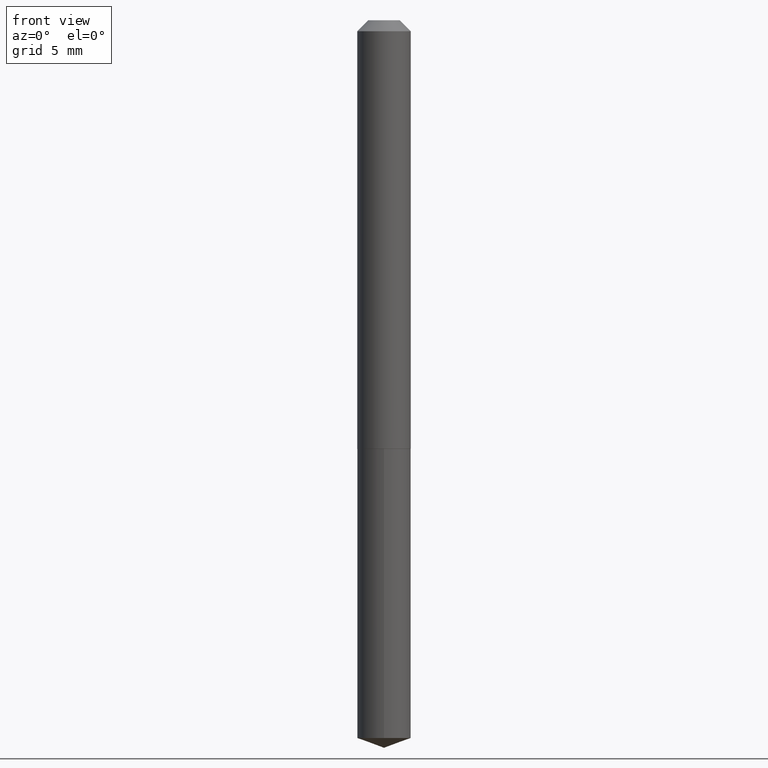
[diagram: clean part render]
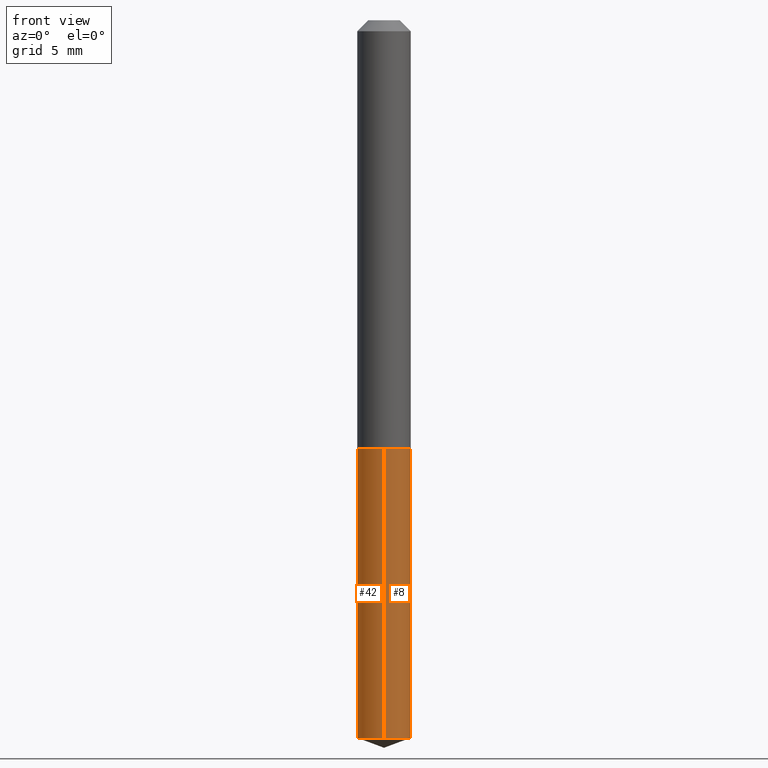
[diagram: same view with one multi-face feature highlighted, each face labeled with its STEP entity id]
A machine part, front view. The highlighted faces form ONE feature: a constant-radius fillet chain: 2 tangent blend faces with common blend radius 1.9304 mm. The faces share edges in the B-rep.
Their STEP definitions:
[1] entity #42 (Cylinder):
#2 = FACE_OUTER_BOUND ( 'NONE', #35, .T. ) ;
#17 = ORIENTED_EDGE ( 'NONE', *, *, #240, .F. ) ;
#23 = CIRCLE ( 'NONE', #84, 0.07599999999999999811 ) ;
#32 = DIRECTION ( 'NONE',  ( -2.445502478072881663E-29, 3.491433118783410278E-15, 1.000000000000000000 ) ) ;
#35 = EDGE_LOOP ( 'NONE', ( #17, #175, #110, #315 ) ) ;
#40 = CARTESIAN_POINT ( 'NONE',  ( 4.976161118169602399E-29, -7.104560263260536037E-15, -2.034838262195768799 ) ) ;
#42 = ADVANCED_FACE ( 'NONE', ( #2 ), #325, .T. ) ;
#60 = VERTEX_POINT ( 'NONE', #157 ) ;
#74 = EDGE_CURVE ( 'NONE', #326, #60, #183, .T. ) ;
#75 = DIRECTION ( 'NONE',  ( -2.445502478072881663E-29, 3.491433118783410278E-15, 1.000000000000000000 ) ) ;
#84 = AXIS2_PLACEMENT_3D ( 'NONE', #172, #384, #352 ) ;
#85 = VERTEX_POINT ( 'NONE', #125 ) ;
#110 = ORIENTED_EDGE ( 'NONE', *, *, #74, .T. ) ;
#121 = AXIS2_PLACEMENT_3D ( 'NONE', #323, #187, #390 ) ;
#125 = CARTESIAN_POINT ( 'NONE',  ( 5.400124791777260233E-16, 0.07599999999999575151, -1.214500000000000357 ) ) ;
#157 = CARTESIAN_POINT ( 'NONE',  ( -5.307051635041264353E-16, -0.07600000000000424472, -1.214499999999999691 ) ) ;
#172 = CARTESIAN_POINT ( 'NONE',  ( 2.970021865111848096E-29, -4.240404086025000196E-15, -1.214499999999999913 ) ) ;
#175 = ORIENTED_EDGE ( 'NONE', *, *, #215, .T. ) ;
#177 = VECTOR ( 'NONE', #75, 39.37007874015748143 ) ;
#183 = LINE ( 'NONE', #293, #246 ) ;
#187 = DIRECTION ( 'NONE',  ( -2.445502478072881383E-29, 3.491433118783410278E-15, 1.000000000000000000 ) ) ;
#197 = CARTESIAN_POINT ( 'NONE',  ( -5.307051635041065165E-16, -0.07600000000000708966, -2.034838262195768799 ) ) ;
#204 = AXIS2_PLACEMENT_3D ( 'NONE', #40, #337, #276 ) ;
#212 = VERTEX_POINT ( 'NONE', #266 ) ;
#215 = EDGE_CURVE ( 'NONE', #212, #326, #236, .T. ) ;
#222 = LINE ( 'NONE', #370, #177 ) ;
#236 = CIRCLE ( 'NONE', #204, 0.07599999999999999811 ) ;
#240 = EDGE_CURVE ( 'NONE', #212, #85, #222, .T. ) ;
#246 = VECTOR ( 'NONE', #32, 39.37007874015748143 ) ;
#266 = CARTESIAN_POINT ( 'NONE',  ( 5.400124791777257275E-16, 0.07599999999999289269, -2.034838262195769243 ) ) ;
#276 = DIRECTION ( 'NONE',  ( -6.982962677686265922E-15, -1.000000000000000000, 3.594536833768767206E-15 ) ) ;
#293 = CARTESIAN_POINT ( 'NONE',  ( -5.307051635041264353E-16, -0.07600000000000424472, -1.214499999999999691 ) ) ;
#295 = EDGE_CURVE ( 'NONE', #85, #60, #23, .T. ) ;
#315 = ORIENTED_EDGE ( 'NONE', *, *, #295, .F. ) ;
#323 = CARTESIAN_POINT ( 'NONE',  ( 2.970021865111848096E-29, -4.240404086025000196E-15, -1.214499999999999913 ) ) ;
#325 = CYLINDRICAL_SURFACE ( 'NONE', #121, 0.07599999999999999811 ) ;
#326 = VERTEX_POINT ( 'NONE', #197 ) ;
#337 = DIRECTION ( 'NONE',  ( -2.445502478072881383E-29, 3.491433118783410278E-15, 1.000000000000000000 ) ) ;
#352 = DIRECTION ( 'NONE',  ( -6.982962677686265922E-15, -1.000000000000000000, 3.594536833768767206E-15 ) ) ;
#370 = CARTESIAN_POINT ( 'NONE',  ( 5.400124791777058087E-16, 0.07599999999999575151, -1.214500000000000357 ) ) ;
#384 = DIRECTION ( 'NONE',  ( -2.445502478072881383E-29, 3.491433118783410278E-15, 1.000000000000000000 ) ) ;
#390 = DIRECTION ( 'NONE',  ( -6.982962677686265922E-15, -1.000000000000000000, 3.594536833768767206E-15 ) ) ;
[2] entity #8 (Cylinder):
#6 = DIRECTION ( 'NONE',  ( -6.982962677686265922E-15, -1.000000000000000000, 3.594536833768767206E-15 ) ) ;
#8 = ADVANCED_FACE ( 'NONE', ( #48 ), #81, .T. ) ;
#19 = DIRECTION ( 'NONE',  ( -2.445502478072881383E-29, 3.491433118783410278E-15, 1.000000000000000000 ) ) ;
#31 = EDGE_CURVE ( 'NONE', #60, #85, #351, .T. ) ;
#32 = DIRECTION ( 'NONE',  ( -2.445502478072881663E-29, 3.491433118783410278E-15, 1.000000000000000000 ) ) ;
#48 = FACE_OUTER_BOUND ( 'NONE', #278, .T. ) ;
#56 = DIRECTION ( 'NONE',  ( -2.445502478072881383E-29, 3.491433118783410278E-15, 1.000000000000000000 ) ) ;
#60 = VERTEX_POINT ( 'NONE', #157 ) ;
#74 = EDGE_CURVE ( 'NONE', #326, #60, #183, .T. ) ;
#75 = DIRECTION ( 'NONE',  ( -2.445502478072881663E-29, 3.491433118783410278E-15, 1.000000000000000000 ) ) ;
#81 = CYLINDRICAL_SURFACE ( 'NONE', #285, 0.07599999999999999811 ) ;
#85 = VERTEX_POINT ( 'NONE', #125 ) ;
#125 = CARTESIAN_POINT ( 'NONE',  ( 5.400124791777260233E-16, 0.07599999999999575151, -1.214500000000000357 ) ) ;
#141 = AXIS2_PLACEMENT_3D ( 'NONE', #253, #224, #340 ) ;
#157 = CARTESIAN_POINT ( 'NONE',  ( -5.307051635041264353E-16, -0.07600000000000424472, -1.214499999999999691 ) ) ;
#161 = ORIENTED_EDGE ( 'NONE', *, *, #240, .T. ) ;
#165 = DIRECTION ( 'NONE',  ( -6.982962677686265922E-15, -1.000000000000000000, 3.594536833768767206E-15 ) ) ;
#177 = VECTOR ( 'NONE', #75, 39.37007874015748143 ) ;
#183 = LINE ( 'NONE', #293, #246 ) ;
#197 = CARTESIAN_POINT ( 'NONE',  ( -5.307051635041065165E-16, -0.07600000000000708966, -2.034838262195768799 ) ) ;
#206 = ORIENTED_EDGE ( 'NONE', *, *, #74, .F. ) ;
#212 = VERTEX_POINT ( 'NONE', #266 ) ;
#218 = ORIENTED_EDGE ( 'NONE', *, *, #258, .T. ) ;
#222 = LINE ( 'NONE', #370, #177 ) ;
#224 = DIRECTION ( 'NONE',  ( -2.445502478072881383E-29, 3.491433118783410278E-15, 1.000000000000000000 ) ) ;
#230 = ORIENTED_EDGE ( 'NONE', *, *, #31, .F. ) ;
#240 = EDGE_CURVE ( 'NONE', #212, #85, #222, .T. ) ;
#246 = VECTOR ( 'NONE', #32, 39.37007874015748143 ) ;
#253 = CARTESIAN_POINT ( 'NONE',  ( 2.970021865111848096E-29, -4.240404086025000196E-15, -1.214499999999999913 ) ) ;
#258 = EDGE_CURVE ( 'NONE', #326, #212, #286, .T. ) ;
#266 = CARTESIAN_POINT ( 'NONE',  ( 5.400124791777257275E-16, 0.07599999999999289269, -2.034838262195769243 ) ) ;
#278 = EDGE_LOOP ( 'NONE', ( #218, #161, #230, #206 ) ) ;
#280 = CARTESIAN_POINT ( 'NONE',  ( 2.970021865111848096E-29, -4.240404086025000196E-15, -1.214499999999999913 ) ) ;
#285 = AXIS2_PLACEMENT_3D ( 'NONE', #280, #56, #6 ) ;
#286 = CIRCLE ( 'NONE', #359, 0.07599999999999999811 ) ;
#293 = CARTESIAN_POINT ( 'NONE',  ( -5.307051635041264353E-16, -0.07600000000000424472, -1.214499999999999691 ) ) ;
#307 = CARTESIAN_POINT ( 'NONE',  ( 4.976161118169602399E-29, -7.104560263260536037E-15, -2.034838262195768799 ) ) ;
#326 = VERTEX_POINT ( 'NONE', #197 ) ;
#340 = DIRECTION ( 'NONE',  ( -6.982962677686265922E-15, -1.000000000000000000, 3.594536833768767206E-15 ) ) ;
#351 = CIRCLE ( 'NONE', #141, 0.07599999999999999811 ) ;
#359 = AXIS2_PLACEMENT_3D ( 'NONE', #307, #19, #165 ) ;
#370 = CARTESIAN_POINT ( 'NONE',  ( 5.400124791777058087E-16, 0.07599999999999575151, -1.214500000000000357 ) ) ;